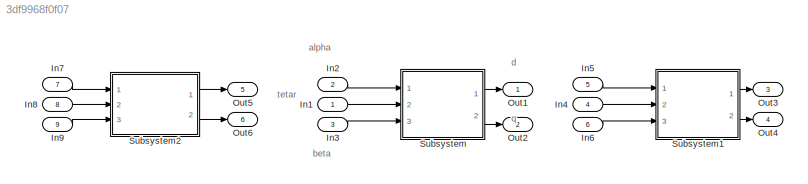
MODEL slx_3df9968f0f07
KIND model
CONFIG AbsTol = auto
CONFIG EnableMultiTasking = off
CONFIG FixedStep = auto
CONFIG MaxStep = auto
CONFIG MinStep = auto
CONFIG RelTol = 1e-3
CONFIG SampleTimeConstraint = Unconstrained
CONFIG Solver = VariableStepAuto
CONFIG SolverName = VariableStepAuto
CONFIG StartTime = 0.0
CONFIG StopTime = 10.0
BLOCK [Inport] In1
  IconDisplay = Port number
BLOCK [Inport] In2
  IconDisplay = Port number
  Port = 2
BLOCK [Inport] In3
  IconDisplay = Port number
  Port = 3
BLOCK [Inport] In4
  IconDisplay = Port number
  Port = 4
BLOCK [Inport] In5
  IconDisplay = Port number
  Port = 5
BLOCK [Inport] In6
  IconDisplay = Port number
  Port = 6
BLOCK [Inport] In7
  IconDisplay = Port number
  Port = 7
BLOCK [Inport] In8
  IconDisplay = Port number
  Port = 8
BLOCK [Inport] In9
  IconDisplay = Port number
  Port = 9
BLOCK [Outport] Out1
  IconDisplay = Port number
BLOCK [Outport] Out2
  IconDisplay = Port number
  Port = 2
BLOCK [Outport] Out3
  IconDisplay = Port number
  Port = 3
BLOCK [Outport] Out4
  IconDisplay = Port number
  Port = 4
BLOCK [Outport] Out5
  IconDisplay = Port number
  Port = 5
BLOCK [Outport] Out6
  IconDisplay = Port number
  Port = 6
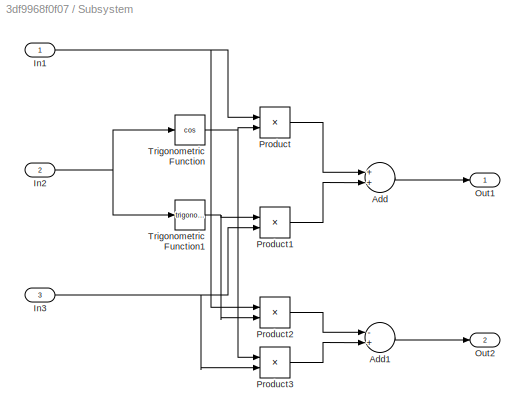
BLOCK [SubSystem] Subsystem
  Ports = [3, 2]
  RequestExecContextInheritance = off
BLOCK [Sum] Subsystem/Add
  InputSameDT = off
  OutDataTypeStr = Inherit: Inherit via internal rule
  Ports = [2, 1]
  SaturateOnIntegerOverflow = off
BLOCK [Sum] Subsystem/Add1
  InputSameDT = off
  Inputs = -+
  OutDataTypeStr = Inherit: Inherit via internal rule
  Ports = [2, 1]
  SaturateOnIntegerOverflow = off
BLOCK [Inport] Subsystem/In1
  IconDisplay = Port number
BLOCK [Inport] Subsystem/In2
  IconDisplay = Port number
  Port = 2
BLOCK [Inport] Subsystem/In3
  IconDisplay = Port number
  Port = 3
BLOCK [Outport] Subsystem/Out1
  IconDisplay = Port number
BLOCK [Outport] Subsystem/Out2
  IconDisplay = Port number
  Port = 2
BLOCK [Product] Subsystem/Product
  InputSameDT = off
  OutDataTypeStr = Inherit: Inherit via internal rule
  Ports = [2, 1]
  RndMeth = Floor
  SaturateOnIntegerOverflow = off
BLOCK [Product] Subsystem/Product1
  InputSameDT = off
  OutDataTypeStr = Inherit: Inherit via internal rule
  Ports = [2, 1]
  RndMeth = Floor
  SaturateOnIntegerOverflow = off
BLOCK [Product] Subsystem/Product2
  InputSameDT = off
  OutDataTypeStr = Inherit: Inherit via internal rule
  Ports = [2, 1]
  RndMeth = Floor
  SaturateOnIntegerOverflow = off
BLOCK [Product] Subsystem/Product3
  InputSameDT = off
  OutDataTypeStr = Inherit: Inherit via internal rule
  Ports = [2, 1]
  RndMeth = Floor
  SaturateOnIntegerOverflow = off
BLOCK [Trigonometry] Subsystem/Trigonometric Function
  Operator = cos
  Ports = [1, 1]
BLOCK [Trigonometry] Subsystem/Trigonometric Function1
  Ports = [1, 1]
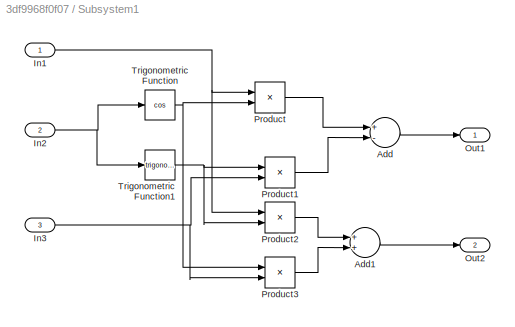
BLOCK [SubSystem] Subsystem1
  Ports = [3, 2]
  RequestExecContextInheritance = off
BLOCK [Sum] Subsystem1/Add
  InputSameDT = off
  Inputs = +-
  OutDataTypeStr = Inherit: Inherit via internal rule
  Ports = [2, 1]
  SaturateOnIntegerOverflow = off
BLOCK [Sum] Subsystem1/Add1
  InputSameDT = off
  OutDataTypeStr = Inherit: Inherit via internal rule
  Ports = [2, 1]
  SaturateOnIntegerOverflow = off
BLOCK [Inport] Subsystem1/In1
  IconDisplay = Port number
BLOCK [Inport] Subsystem1/In2
  IconDisplay = Port number
  Port = 2
BLOCK [Inport] Subsystem1/In3
  IconDisplay = Port number
  Port = 3
BLOCK [Outport] Subsystem1/Out1
  IconDisplay = Port number
BLOCK [Outport] Subsystem1/Out2
  IconDisplay = Port number
  Port = 2
BLOCK [Product] Subsystem1/Product
  InputSameDT = off
  OutDataTypeStr = Inherit: Inherit via internal rule
  Ports = [2, 1]
  RndMeth = Floor
  SaturateOnIntegerOverflow = off
BLOCK [Product] Subsystem1/Product1
  InputSameDT = off
  OutDataTypeStr = Inherit: Inherit via internal rule
  Ports = [2, 1]
  RndMeth = Floor
  SaturateOnIntegerOverflow = off
BLOCK [Product] Subsystem1/Product2
  InputSameDT = off
  OutDataTypeStr = Inherit: Inherit via internal rule
  Ports = [2, 1]
  RndMeth = Floor
  SaturateOnIntegerOverflow = off
BLOCK [Product] Subsystem1/Product3
  InputSameDT = off
  OutDataTypeStr = Inherit: Inherit via internal rule
  Ports = [2, 1]
  RndMeth = Floor
  SaturateOnIntegerOverflow = off
BLOCK [Trigonometry] Subsystem1/Trigonometric Function
  Operator = cos
  Ports = [1, 1]
BLOCK [Trigonometry] Subsystem1/Trigonometric Function1
  Ports = [1, 1]
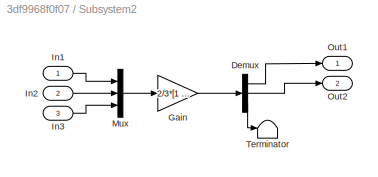
BLOCK [SubSystem] Subsystem2
  Ports = [3, 2]
  RequestExecContextInheritance = off
BLOCK [Demux] Subsystem2/Demux
  DisplayOption = bar
  Outputs = 3
  Ports = [1, 3]
BLOCK [Gain] Subsystem2/Gain
  Gain = 2/3*[1 -1/2 -1/2;0 sqrt(3)/2 -sqrt(3)/2;1/2 1/2 1/2]
  OutDataTypeStr = Inherit: Inherit via internal rule
  ParamDataTypeStr = Inherit: Inherit via internal rule
  SaturateOnIntegerOverflow = off
BLOCK [Inport] Subsystem2/In1
  IconDisplay = Port number
BLOCK [Inport] Subsystem2/In2
  IconDisplay = Port number
  Port = 2
BLOCK [Inport] Subsystem2/In3
  IconDisplay = Port number
  Port = 3
BLOCK [Mux] Subsystem2/Mux
  DisplayOption = bar
  Inputs = 3
  Ports = [3, 1]
BLOCK [Outport] Subsystem2/Out1
  IconDisplay = Port number
BLOCK [Outport] Subsystem2/Out2
  IconDisplay = Port number
  Port = 2
BLOCK [Terminator] Subsystem2/Terminator
ANNOTATION (root): alpha
ANNOTATION (root): beta
ANNOTATION (root): d
ANNOTATION (root): q
ANNOTATION (root): tetar
LINE In1:1 -> Subsystem:2
LINE In2:1 -> Subsystem:1
LINE In3:1 -> Subsystem:3
LINE In4:1 -> Subsystem1:2
LINE In5:1 -> Subsystem1:1
LINE In6:1 -> Subsystem1:3
LINE In7:1 -> Subsystem2:1
LINE In8:1 -> Subsystem2:2
LINE In9:1 -> Subsystem2:3
LINE Subsystem/Add1:1 -> Subsystem/Out2:1
LINE Subsystem/Add:1 -> Subsystem/Out1:1
NET Subsystem/In1:1 -> Subsystem/Product2:1, Subsystem/Product:1
NET Subsystem/In2:1 -> Subsystem/Trigonometric Function1:1, Subsystem/Trigonometric Function:1
NET Subsystem/In3:1 -> Subsystem/Product1:2, Subsystem/Product3:2
LINE Subsystem/Product1:1 -> Subsystem/Add:2
LINE Subsystem/Product2:1 -> Subsystem/Add1:1
LINE Subsystem/Product3:1 -> Subsystem/Add1:2
LINE Subsystem/Product:1 -> Subsystem/Add:1
NET Subsystem/Trigonometric Function1:1 -> Subsystem/Product1:1, Subsystem/Product2:2
NET Subsystem/Trigonometric Function:1 -> Subsystem/Product3:1, Subsystem/Product:2
LINE Subsystem1/Add1:1 -> Subsystem1/Out2:1
LINE Subsystem1/Add:1 -> Subsystem1/Out1:1
NET Subsystem1/In1:1 -> Subsystem1/Product2:1, Subsystem1/Product:1
NET Subsystem1/In2:1 -> Subsystem1/Trigonometric Function1:1, Subsystem1/Trigonometric Function:1
NET Subsystem1/In3:1 -> Subsystem1/Product1:2, Subsystem1/Product3:2
LINE Subsystem1/Product1:1 -> Subsystem1/Add:2
LINE Subsystem1/Product2:1 -> Subsystem1/Add1:1
LINE Subsystem1/Product3:1 -> Subsystem1/Add1:2
LINE Subsystem1/Product:1 -> Subsystem1/Add:1
NET Subsystem1/Trigonometric Function1:1 -> Subsystem1/Product1:1, Subsystem1/Product2:2
NET Subsystem1/Trigonometric Function:1 -> Subsystem1/Product3:1, Subsystem1/Product:2
LINE Subsystem1:1 -> Out3:1
LINE Subsystem1:2 -> Out4:1
LINE Subsystem2/Demux:1 -> Subsystem2/Out1:1
LINE Subsystem2/Demux:2 -> Subsystem2/Out2:1
LINE Subsystem2/Demux:3 -> Subsystem2/Terminator:1
LINE Subsystem2/Gain:1 -> Subsystem2/Demux:1
LINE Subsystem2/In1:1 -> Subsystem2/Mux:1
LINE Subsystem2/In2:1 -> Subsystem2/Mux:2
LINE Subsystem2/In3:1 -> Subsystem2/Mux:3
LINE Subsystem2/Mux:1 -> Subsystem2/Gain:1
LINE Subsystem2:1 -> Out5:1
LINE Subsystem2:2 -> Out6:1
LINE Subsystem:1 -> Out1:1
LINE Subsystem:2 -> Out2:1
note: NET lines group one-source signal fan-out (src -> all destinations, sorted); 1:1 wires keep LINE
